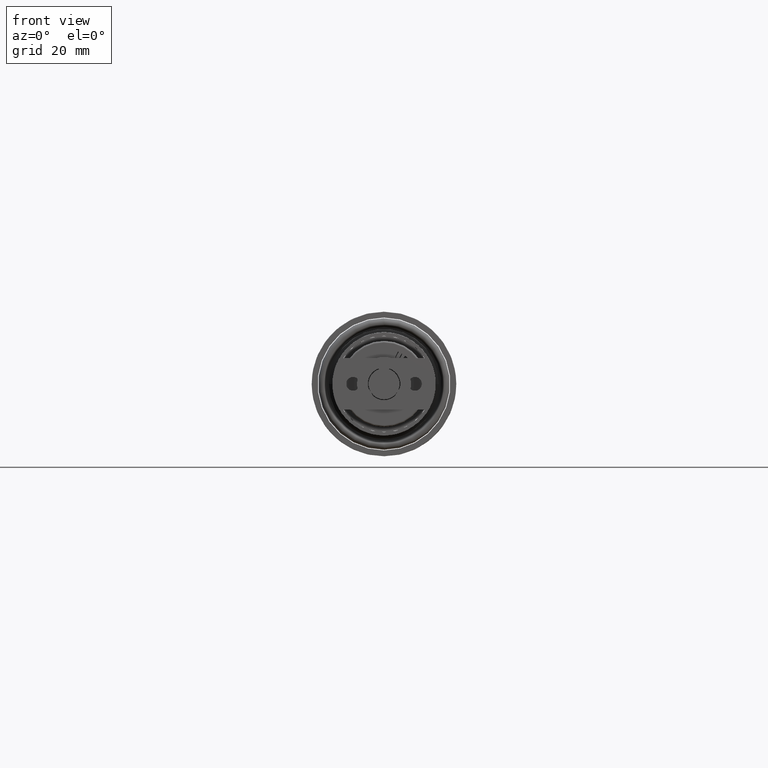
[diagram: clean part render]
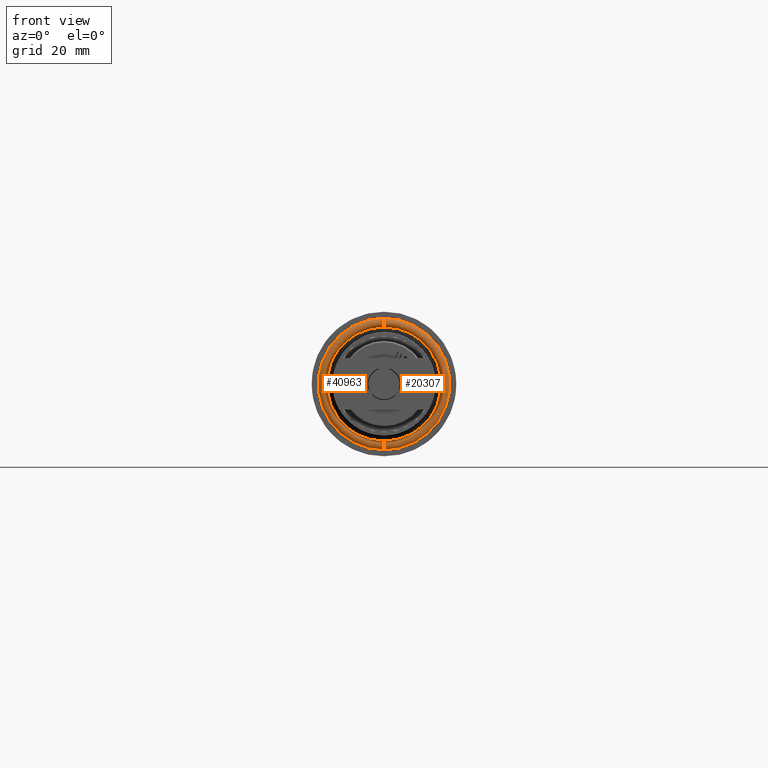
[diagram: same view with one multi-face feature highlighted, each face labeled with its STEP entity id]
A machine part, front view. The highlighted faces form ONE feature: a constant-radius fillet chain: 2 tangent blend faces with common blend radius 1.31 mm. The faces share edges in the B-rep.
Their STEP definitions:
[1] entity #40963 (Torus):
#132 = TOROIDAL_SURFACE ( 'NONE', #65324, 17.80499999999999972, 1.309999999999998277 ) ;
#4935 = FACE_OUTER_BOUND ( 'NONE', #63347, .T. ) ;
#7947 = ORIENTED_EDGE ( 'NONE', *, *, #43641, .F. ) ;
#9878 = DIRECTION ( 'NONE',  ( -0.0000000000000000000, 1.000000000000000000, -0.0000000000000000000 ) ) ;
#13361 = DIRECTION ( 'NONE',  ( -0.0000000000000000000, 1.000000000000000000, -0.0000000000000000000 ) ) ;
#13424 = AXIS2_PLACEMENT_3D ( 'NONE', #32012, #53085, #42747 ) ;
#13529 = DIRECTION ( 'NONE',  ( 1.224646799147352961E-16, 0.0000000000000000000, -1.000000000000000000 ) ) ;
#18931 = ORIENTED_EDGE ( 'NONE', *, *, #23543, .T. ) ;
#23543 = EDGE_CURVE ( 'NONE', #40534, #63554, #24565, .T. ) ;
#24437 = CARTESIAN_POINT ( 'NONE',  ( 0.0000000000000000000, 1.049999999999998934, 16.49500000000000099 ) ) ;
#24565 = CIRCLE ( 'NONE', #13424, 1.309999999999998721 ) ;
#25139 = DIRECTION ( 'NONE',  ( 0.0000000000000000000, 0.0000000000000000000, 1.000000000000000000 ) ) ;
#25322 = EDGE_CURVE ( 'NONE', #60640, #43602, #56896, .T. ) ;
#27873 = CARTESIAN_POINT ( 'NONE',  ( 0.0000000000000000000, 1.049999999999999156, 19.11499999999999844 ) ) ;
#28113 = CIRCLE ( 'NONE', #40275, 19.11499999999999844 ) ;
#32012 = CARTESIAN_POINT ( 'NONE',  ( 0.0000000000000000000, 1.049999999999999156, 17.80499999999999972 ) ) ;
#33569 = CARTESIAN_POINT ( 'NONE',  ( 2.340912356570165686E-15, 1.049999999999999156, -19.11499999999999844 ) ) ;
#34349 = DIRECTION ( 'NONE',  ( 1.000000000000000000, 0.0000000000000000000, 1.224646799147353207E-16 ) ) ;
#36308 = CIRCLE ( 'NONE', #50641, 16.49500000000000099 ) ;
#38171 = ORIENTED_EDGE ( 'NONE', *, *, #45271, .T. ) ;
#40275 = AXIS2_PLACEMENT_3D ( 'NONE', #45914, #51395, #41395 ) ;
#40534 = VERTEX_POINT ( 'NONE', #24437 ) ;
#40963 = ADVANCED_FACE ( 'NONE', ( #4935 ), #132, .T. ) ;
#41395 = DIRECTION ( 'NONE',  ( 0.0000000000000000000, 0.0000000000000000000, 1.000000000000000000 ) ) ;
#42747 = DIRECTION ( 'NONE',  ( 0.0000000000000000000, 0.0000000000000000000, 1.000000000000000000 ) ) ;
#43420 = ORIENTED_EDGE ( 'NONE', *, *, #25322, .F. ) ;
#43602 = VERTEX_POINT ( 'NONE', #33569 ) ;
#43641 = EDGE_CURVE ( 'NONE', #43602, #63554, #28113, .T. ) ;
#45271 = EDGE_CURVE ( 'NONE', #60640, #40534, #36308, .T. ) ;
#45914 = CARTESIAN_POINT ( 'NONE',  ( 0.0000000000000000000, 1.049999999999999156, 0.0000000000000000000 ) ) ;
#46985 = AXIS2_PLACEMENT_3D ( 'NONE', #56442, #34349, #13529 ) ;
#50641 = AXIS2_PLACEMENT_3D ( 'NONE', #67944, #9878, #25139 ) ;
#50737 = DIRECTION ( 'NONE',  ( 0.0000000000000000000, 0.0000000000000000000, 1.000000000000000000 ) ) ;
#51395 = DIRECTION ( 'NONE',  ( -0.0000000000000000000, 1.000000000000000000, -0.0000000000000000000 ) ) ;
#53085 = DIRECTION ( 'NONE',  ( -1.000000000000000000, 0.0000000000000000000, 0.0000000000000000000 ) ) ;
#53106 = CARTESIAN_POINT ( 'NONE',  ( 2.020054895193559708E-15, 1.049999999999998934, -16.49500000000000099 ) ) ;
#56442 = CARTESIAN_POINT ( 'NONE',  ( 2.180483625881862500E-15, 1.049999999999999156, -17.80499999999999972 ) ) ;
#56896 = CIRCLE ( 'NONE', #46985, 1.309999999999998721 ) ;
#60640 = VERTEX_POINT ( 'NONE', #53106 ) ;
#63347 = EDGE_LOOP ( 'NONE', ( #7947, #43420, #38171, #18931 ) ) ;
#63554 = VERTEX_POINT ( 'NONE', #27873 ) ;
#65324 = AXIS2_PLACEMENT_3D ( 'NONE', #67878, #13361, #50737 ) ;
#67878 = CARTESIAN_POINT ( 'NONE',  ( 0.0000000000000000000, 1.049999999999999156, 0.0000000000000000000 ) ) ;
#67944 = CARTESIAN_POINT ( 'NONE',  ( 0.0000000000000000000, 1.049999999999998934, 0.0000000000000000000 ) ) ;
[2] entity #20307 (Torus):
#3620 = ORIENTED_EDGE ( 'NONE', *, *, #25322, .T. ) ;
#4110 = DIRECTION ( 'NONE',  ( 0.0000000000000000000, 0.0000000000000000000, 1.000000000000000000 ) ) ;
#5361 = DIRECTION ( 'NONE',  ( 0.0000000000000000000, 0.0000000000000000000, 1.000000000000000000 ) ) ;
#9327 = CARTESIAN_POINT ( 'NONE',  ( 0.0000000000000000000, 1.049999999999998934, 0.0000000000000000000 ) ) ;
#13424 = AXIS2_PLACEMENT_3D ( 'NONE', #32012, #53085, #42747 ) ;
#13529 = DIRECTION ( 'NONE',  ( 1.224646799147352961E-16, 0.0000000000000000000, -1.000000000000000000 ) ) ;
#20307 = ADVANCED_FACE ( 'NONE', ( #25657 ), #36243, .T. ) ;
#21290 = CARTESIAN_POINT ( 'NONE',  ( 0.0000000000000000000, 1.049999999999999156, 0.0000000000000000000 ) ) ;
#23543 = EDGE_CURVE ( 'NONE', #40534, #63554, #24565, .T. ) ;
#24437 = CARTESIAN_POINT ( 'NONE',  ( 0.0000000000000000000, 1.049999999999998934, 16.49500000000000099 ) ) ;
#24565 = CIRCLE ( 'NONE', #13424, 1.309999999999998721 ) ;
#25322 = EDGE_CURVE ( 'NONE', #60640, #43602, #56896, .T. ) ;
#25657 = FACE_OUTER_BOUND ( 'NONE', #47758, .T. ) ;
#27096 = EDGE_CURVE ( 'NONE', #63554, #43602, #52826, .T. ) ;
#27873 = CARTESIAN_POINT ( 'NONE',  ( 0.0000000000000000000, 1.049999999999999156, 19.11499999999999844 ) ) ;
#29427 = CARTESIAN_POINT ( 'NONE',  ( 0.0000000000000000000, 1.049999999999999156, 0.0000000000000000000 ) ) ;
#30410 = DIRECTION ( 'NONE',  ( -0.0000000000000000000, 1.000000000000000000, -0.0000000000000000000 ) ) ;
#30945 = EDGE_CURVE ( 'NONE', #40534, #60640, #38084, .T. ) ;
#32012 = CARTESIAN_POINT ( 'NONE',  ( 0.0000000000000000000, 1.049999999999999156, 17.80499999999999972 ) ) ;
#33569 = CARTESIAN_POINT ( 'NONE',  ( 2.340912356570165686E-15, 1.049999999999999156, -19.11499999999999844 ) ) ;
#34349 = DIRECTION ( 'NONE',  ( 1.000000000000000000, 0.0000000000000000000, 1.224646799147353207E-16 ) ) ;
#35366 = DIRECTION ( 'NONE',  ( 0.0000000000000000000, 0.0000000000000000000, 1.000000000000000000 ) ) ;
#36243 = TOROIDAL_SURFACE ( 'NONE', #57213, 17.80499999999999972, 1.309999999999998277 ) ;
#38084 = CIRCLE ( 'NONE', #40289, 16.49500000000000099 ) ;
#38124 = ORIENTED_EDGE ( 'NONE', *, *, #23543, .F. ) ;
#40289 = AXIS2_PLACEMENT_3D ( 'NONE', #9327, #30410, #4110 ) ;
#40534 = VERTEX_POINT ( 'NONE', #24437 ) ;
#41231 = DIRECTION ( 'NONE',  ( -0.0000000000000000000, 1.000000000000000000, -0.0000000000000000000 ) ) ;
#42743 = DIRECTION ( 'NONE',  ( -0.0000000000000000000, 1.000000000000000000, -0.0000000000000000000 ) ) ;
#42747 = DIRECTION ( 'NONE',  ( 0.0000000000000000000, 0.0000000000000000000, 1.000000000000000000 ) ) ;
#43602 = VERTEX_POINT ( 'NONE', #33569 ) ;
#46985 = AXIS2_PLACEMENT_3D ( 'NONE', #56442, #34349, #13529 ) ;
#47758 = EDGE_LOOP ( 'NONE', ( #68248, #38124, #60950, #3620 ) ) ;
#50617 = AXIS2_PLACEMENT_3D ( 'NONE', #21290, #42743, #5361 ) ;
#52826 = CIRCLE ( 'NONE', #50617, 19.11499999999999844 ) ;
#53085 = DIRECTION ( 'NONE',  ( -1.000000000000000000, 0.0000000000000000000, 0.0000000000000000000 ) ) ;
#53106 = CARTESIAN_POINT ( 'NONE',  ( 2.020054895193559708E-15, 1.049999999999998934, -16.49500000000000099 ) ) ;
#56442 = CARTESIAN_POINT ( 'NONE',  ( 2.180483625881862500E-15, 1.049999999999999156, -17.80499999999999972 ) ) ;
#56896 = CIRCLE ( 'NONE', #46985, 1.309999999999998721 ) ;
#57213 = AXIS2_PLACEMENT_3D ( 'NONE', #29427, #41231, #35366 ) ;
#60640 = VERTEX_POINT ( 'NONE', #53106 ) ;
#60950 = ORIENTED_EDGE ( 'NONE', *, *, #30945, .T. ) ;
#63554 = VERTEX_POINT ( 'NONE', #27873 ) ;
#68248 = ORIENTED_EDGE ( 'NONE', *, *, #27096, .F. ) ;